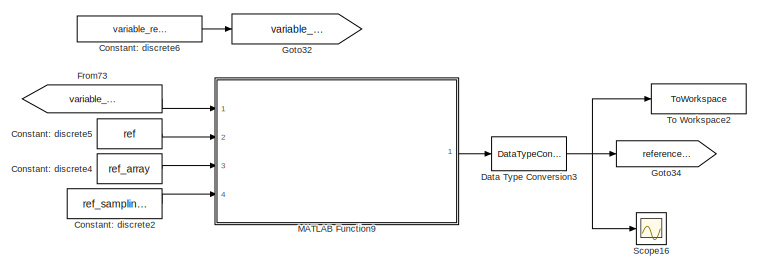
[diagram: root canvas - part 1/5, top right region]
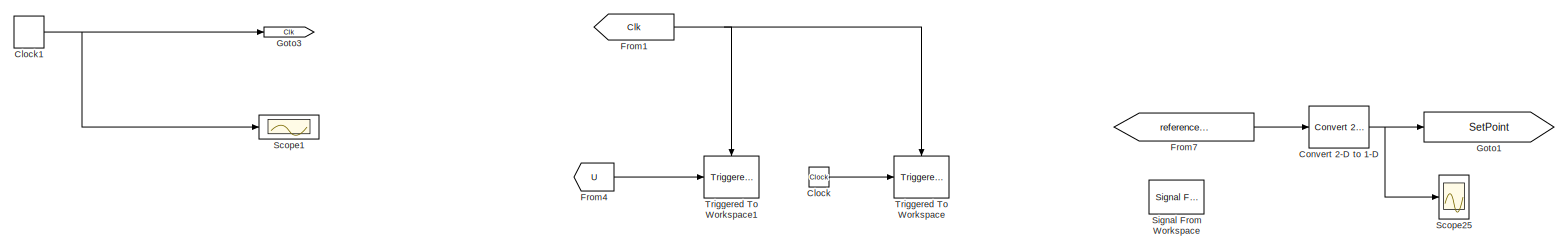
[diagram: root canvas - part 2/5, full width, middle band]
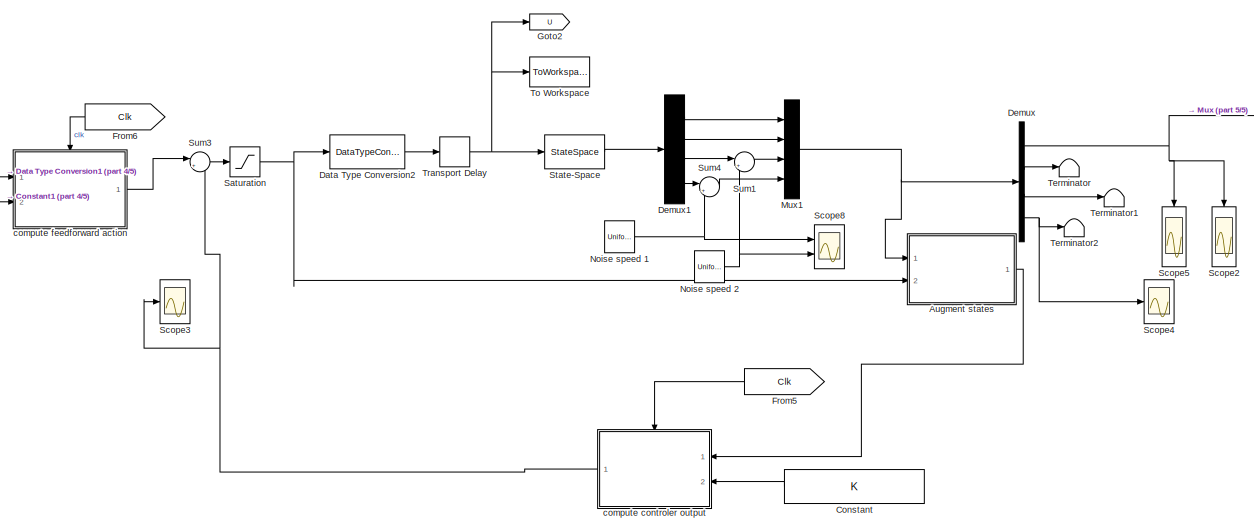
[diagram: root canvas - part 3/5, bottom center region]
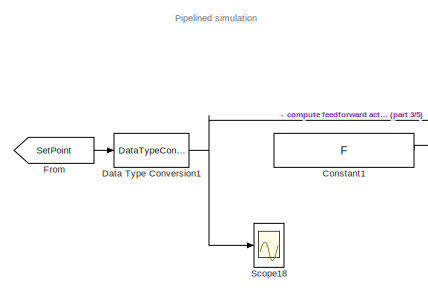
[diagram: root canvas - part 4/5, bottom left region]
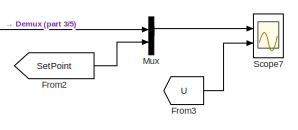
[diagram: root canvas - part 5/5, middle right region]
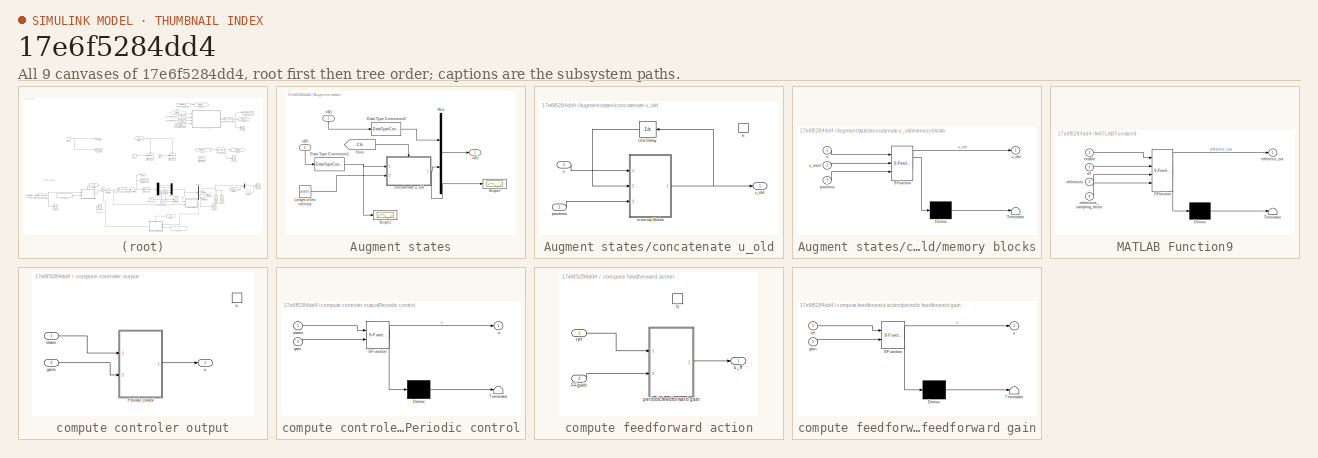
[diagram: thumbnail index - all 9 canvases of the model, root first then tree order]
MODEL slx_17e6f5284dd4
KIND model
CONFIG AbsTol = auto
CONFIG EnableMultiTasking = on
CONFIG FixedStep = auto
CONFIG MaxStep = auto
CONFIG MinStep = auto
CONFIG RelTol = 1e-3
CONFIG SampleTimeConstraint = Unconstrained
CONFIG Solver = ode45
CONFIG SolverName = ode45
CONFIG StartTime = 0.0
CONFIG StopTime = Tend
BLOCK [SubSystem] Augment states
  Ports = [2, 1]
  RequestExecContextInheritance = off
  Variant = off
BLOCK [DataTypeConversion] Augment states/Data Type Conversion1
  OutDataTypeStr = single
  RndMeth = Floor
  SaturateOnIntegerOverflow = off
BLOCK [DataTypeConversion] Augment states/Data Type Conversion2
  OutDataTypeStr = single
  RndMeth = Floor
  SaturateOnIntegerOverflow = off
BLOCK [From] Augment states/From
  GotoTag = Clk
  TagVisibility = global
BLOCK [Constant] Augment states/Lenght of the memory
  Value = pipes
BLOCK [Mux] Augment states/Mux
  DisplayOption = bar
  Inputs = 2
  Ports = [2, 1]
BLOCK [Scope] Augment states/Scope1
  NumInputPorts = 1
  Ports = [1]
  ScopeSpecificationString = Simulink.scopes.TimeScopeBlockCfg('CurrentConfiguration', extmgr.ConfigurationSet(extmgr.Configuration('Core','General UI',true),extmgr.Configuration('Core','Source UI',true),extmgr.Configuration('Sources','WiredSimulink',true,'DataLogging',true,'DataLoggingVariableName','combined_output4','DataLoggingSaveFormat','Array','DataLoggingDecimation','1','DataLoggingDecimateData',true),extmgr.Configurat...<+1747ch>
BLOCK [Scope] Augment states/Scope7
  NumInputPorts = 1
  Ports = [1]
  ScopeSpecificationString = Simulink.scopes.TimeScopeBlockCfg('CurrentConfiguration', extmgr.ConfigurationSet(extmgr.Configuration('Core','General UI',true),extmgr.Configuration('Core','Source UI',true),extmgr.Configuration('Sources','WiredSimulink',true,'DataLogging',true,'DataLoggingVariableName','combined_output3','DataLoggingSaveFormat','Array','DataLoggingDecimation','1','DataLoggingDecimateData',true),extmgr.Configurat...<+1747ch>
BLOCK [SubSystem] Augment states/concatenate u_old
  Ports = [2, 1, 0, 1]
  RequestExecContextInheritance = off
  Variant = off
BLOCK [UnitDelay] Augment states/concatenate u_old/Unit Delay
  InputProcessing = Elements as channels (sample based)
  SampleTime = -1
BLOCK [TriggerPort] Augment states/concatenate u_old/h
  PortDimensions = 1
  Ports = []
  StatesWhenEnabling = held
  VariantControl = Variant
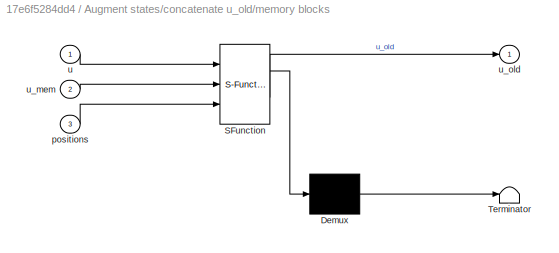
BLOCK [SubSystem] Augment states/concatenate u_old/memory blocks
  ErrorFcn = Stateflow.Translate.translate
  PermitHierarchicalResolution = ExplicitOnly
  Ports = [3, 1]
  RequestExecContextInheritance = off
  SFBlockType = MATLAB Function
  TreatAsAtomicUnit = on
  Variant = off
BLOCK [Demux] Augment states/concatenate u_old/memory blocks/ Demux 
  Outputs = 1
  Ports = [1, 1]
BLOCK [S-Function] Augment states/concatenate u_old/memory blocks/ SFunction 
  EnableBusSupport = on
  FunctionName = sf_sfun
  PortCounts = [3 2]
  Ports = [3, 2]
  SFcnIsStateOwnerBlock = off
  SFunctionDeploymentMode = off
  Tag = Stateflow S-Function simulink_pso 1
BLOCK [Terminator] Augment states/concatenate u_old/memory blocks/ Terminator 
BLOCK [Inport] Augment states/concatenate u_old/memory blocks/positions
  IconDisplay = Port number
  Port = 3
BLOCK [Inport] Augment states/concatenate u_old/memory blocks/u
  IconDisplay = Port number
BLOCK [Inport] Augment states/concatenate u_old/memory blocks/u_mem
  IconDisplay = Port number
  Port = 2
BLOCK [Outport] Augment states/concatenate u_old/memory blocks/u_old
  IconDisplay = Port number
BLOCK [Inport] Augment states/concatenate u_old/positions
  IconDisplay = Port number
  Port = 2
BLOCK [Inport] Augment states/concatenate u_old/u
  IconDisplay = Port number
  LatchByDelayingOutsideSignal = on
BLOCK [Outport] Augment states/concatenate u_old/u_old
  IconDisplay = Port number
  OutDataTypeStr = single
BLOCK [Inport] Augment states/u(k)
  IconDisplay = Port number
  Port = 2
BLOCK [Inport] Augment states/x(k)
  IconDisplay = Port number
BLOCK [Outport] Augment states/z(k)
  IconDisplay = Port number
BLOCK [Clock] Clock
BLOCK [DiscretePulseGenerator] Clock1
  Period = Ts
  PhaseDelay = 1e-9
  Ports = [0, 1]
  PulseType = Time based
BLOCK [Constant] Constant
  Value = K
  VectorParams1D = off
BLOCK [Constant] Constant1
  Value = F
  VectorParams1D = off
BLOCK [Constant] Constant: discrete2
  OutDataTypeStr = single
  SampleTime = Sm
  Value = ref_sampling_factor
BLOCK [Constant] Constant: discrete4
  OutDataTypeStr = single
  SampleTime = Sm
  Value = ref_array
BLOCK [Constant] Constant: discrete5
  OutDataTypeStr = single
  SampleTime = Sm
  Value = ref
BLOCK [Constant] Constant: discrete6
  SampleTime = Sm
  Value = variable_reference_enable
BLOCK [Reference] Convert 2-D to 1-D  REF=dspsigattribs/Convert 2-D to 1-D
  Ports = [1, 1]
  SourceBlock = dspsigattribs/Convert 2-D to 1-D
  SourceType = Convert 2-D to 1-D
BLOCK [DataTypeConversion] Data Type Conversion1
  OutDataTypeStr = single
  RndMeth = Floor
  SaturateOnIntegerOverflow = off
BLOCK [DataTypeConversion] Data Type Conversion2
  OutDataTypeStr = double
  RndMeth = Floor
  SaturateOnIntegerOverflow = off
BLOCK [DataTypeConversion] Data Type Conversion3
  OutDataTypeStr = double
  RndMeth = Floor
  SaturateOnIntegerOverflow = off
BLOCK [Demux] Demux
  DisplayOption = bar
  Ports = [1, 4]
BLOCK [Demux] Demux1
  DisplayOption = bar
  Ports = [1, 4]
BLOCK [From] From
  GotoTag = SetPoint
  TagVisibility = global
BLOCK [From] From1
  GotoTag = Clk
  TagVisibility = global
BLOCK [From] From2
  GotoTag = SetPoint
  TagVisibility = global
BLOCK [From] From3
  GotoTag = U
  TagVisibility = global
BLOCK [From] From4
  GotoTag = U
  TagVisibility = global
BLOCK [From] From5
  GotoTag = Clk
  TagVisibility = global
BLOCK [From] From6
  GotoTag = Clk
  TagVisibility = global
BLOCK [From] From7
  GotoTag = reference_output
BLOCK [From] From73
  GotoTag = variable_ref_enable
BLOCK [Goto] Goto1
  GotoTag = SetPoint
  TagVisibility = global
BLOCK [Goto] Goto2
  GotoTag = U
  TagVisibility = global
BLOCK [Goto] Goto3
  GotoTag = Clk
  TagVisibility = global
BLOCK [Goto] Goto32
  GotoTag = variable_ref_enable
BLOCK [Goto] Goto34
  GotoTag = reference_output
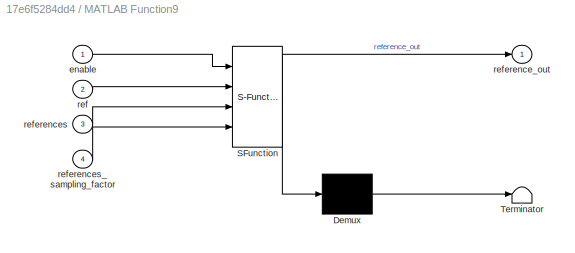
BLOCK [SubSystem] MATLAB Function9
  ErrorFcn = Stateflow.Translate.translate
  PermitHierarchicalResolution = ExplicitOnly
  Ports = [4, 1]
  RequestExecContextInheritance = off
  SFBlockType = MATLAB Function
  TreatAsAtomicUnit = on
  Variant = off
BLOCK [Demux] MATLAB Function9/ Demux 
  Outputs = 1
  Ports = [1, 1]
BLOCK [S-Function] MATLAB Function9/ SFunction 
  EnableBusSupport = on
  FunctionName = sf_sfun
  PortCounts = [4 2]
  Ports = [4, 2]
  SFcnIsStateOwnerBlock = off
  SFunctionDeploymentMode = off
  Tag = Stateflow S-Function simulink_pso 10
BLOCK [Terminator] MATLAB Function9/ Terminator 
BLOCK [Inport] MATLAB Function9/enable
  IconDisplay = Port number
BLOCK [Inport] MATLAB Function9/ref
  IconDisplay = Port number
  Port = 2
BLOCK [Outport] MATLAB Function9/reference_out
  IconDisplay = Port number
BLOCK [Inport] MATLAB Function9/references
  IconDisplay = Port number
  Port = 3
BLOCK [Inport] MATLAB Function9/references_sampling_factor
  IconDisplay = Port number
  Port = 4
BLOCK [Mux] Mux
  DisplayOption = bar
  Inputs = 2
  Ports = [2, 1]
BLOCK [Mux] Mux1
  DisplayOption = bar
  Ports = [4, 1]
BLOCK [UniformRandomNumber] Noise speed 1
  Maximum = Speed_noise
  Minimum = -Speed_noise
  SampleTime = Ts/10
BLOCK [UniformRandomNumber] Noise speed 2
  Maximum = Speed_noise
  Minimum = -Speed_noise
  SampleTime = Ts/10
BLOCK [Saturate] Saturation
  InputPortMap = u0
  LowerLimit = Sat_u(2)
  Ports = [1, 1]
  UpperLimit = Sat_u(1)
BLOCK [Scope] Scope1
  NumInputPorts = 1
  Ports = [1]
  ScopeSpecificationString = Simulink.scopes.TimeScopeBlockCfg('CurrentConfiguration', extmgr.ConfigurationSet(extmgr.Configuration('Core','General UI',true),extmgr.Configuration('Core','Source UI',true),extmgr.Configuration('Sources','WiredSimulink',true,'DataLogging',true,'DataLoggingVariableName','combined_output1','DataLoggingSaveFormat','Array','DataLoggingDecimation','1','DataLoggingDecimateData',true),extmgr.Configurat...<+1676ch>
BLOCK [Scope] Scope16
  NumInputPorts = 1
  Ports = [1]
  ScopeSpecificationString = C++SS(StrPVP('SaveName','ScopeData1'),StrPVP('LimitDataPoints','on'),StrPVP('DataFormat','Array'),StrPVP('Decimation','1'),StrPVP('BlockParamSampleInput','off'))
BLOCK [Scope] Scope18
  NumInputPorts = 1
  Ports = [1]
  ScopeSpecificationString = Simulink.scopes.TimeScopeBlockCfg('CurrentConfiguration', extmgr.ConfigurationSet(extmgr.Configuration('Core','General UI',true),extmgr.Configuration('Core','Source UI',true),extmgr.Configuration('Sources','WiredSimulink',true,'DataLogging',true,'DataLoggingVariableName','reference','DataLoggingSaveFormat','Array','DataLoggingDecimation','1','DataLoggingDecimateData',true),extmgr.Configuration('Vi...<+1760ch>
BLOCK [Scope] Scope2
  NumInputPorts = 1
  Ports = [1]
  ScopeSpecificationString = Simulink.scopes.TimeScopeBlockCfg('CurrentConfiguration', extmgr.ConfigurationSet(extmgr.Configuration('Core','General UI',true),extmgr.Configuration('Core','Source UI',true),extmgr.Configuration('Sources','WiredSimulink',true,'DataLogging',true,'DataLoggingVariableName','Out_sampled','SampleTime','Sm','DataLoggingSaveFormat','Array','DataLoggingDecimation','1','DataLoggingDecimateData',true),extm...<+1760ch>
BLOCK [Scope] Scope25
  NumInputPorts = 1
  Ports = [1]
  ScopeSpecificationString = Simulink.scopes.TimeScopeBlockCfg('CurrentConfiguration', extmgr.ConfigurationSet(extmgr.Configuration('Core','General UI',true),extmgr.Configuration('Core','Source UI',true),extmgr.Configuration('Sources','WiredSimulink',true,'DataLogging',true,'DataLoggingVariableName','SetPoint','SampleTime','h/10','DataLoggingSaveFormat','Array','DataLoggingDecimation','1','DataLoggingDecimateData',true),extmg...<+1774ch>
BLOCK [Scope] Scope3
  NumInputPorts = 1
  Ports = [1]
  ScopeSpecificationString = Simulink.scopes.TimeScopeBlockCfg('CurrentConfiguration', extmgr.ConfigurationSet(extmgr.Configuration('Core','General UI',true),extmgr.Configuration('Core','Source UI',true),extmgr.Configuration('Sources','WiredSimulink',true,'DataLogging',true,'DataLoggingVariableName','U1','SampleTime','h','DataLoggingSaveFormat','Array','DataLoggingDecimation','1','DataLoggingDecimateData',true),extmgr.Configu...<+1756ch>
BLOCK [Scope] Scope4
  NumInputPorts = 1
  Ports = [1]
  ScopeSpecificationString = Simulink.scopes.TimeScopeBlockCfg('CurrentConfiguration', extmgr.ConfigurationSet(extmgr.Configuration('Core','General UI',true),extmgr.Configuration('Core','Source UI',true),extmgr.Configuration('Sources','WiredSimulink',true,'DataLoggingVariableName','ScopeData1'),extmgr.Configuration('Visuals','Time Domain',true,'SerializedDisplays',{struct('MinYLimReal','-7.54826','MaxYLimReal','9.18643','YLab...<+1385ch>
BLOCK [Scope] Scope5
  NumInputPorts = 1
  Ports = [1]
  ScopeSpecificationString = Simulink.scopes.TimeScopeBlockCfg('CurrentConfiguration', extmgr.ConfigurationSet(extmgr.Configuration('Core','General UI',true),extmgr.Configuration('Core','Source UI',true),extmgr.Configuration('Sources','WiredSimulink',true,'DataLogging',true,'DataLoggingVariableName','Out','DataLoggingSaveFormat','Array','DataLoggingDecimation','1','DataLoggingDecimateData',true,'SampleTime','Sm'),extmgr.Confi...<+1711ch>
BLOCK [Scope] Scope7
  NumInputPorts = 2
  Ports = [2]
  ScopeSpecificationString = Simulink.scopes.TimeScopeBlockCfg('CurrentConfiguration', extmgr.ConfigurationSet(extmgr.Configuration('Core','General UI',true),extmgr.Configuration('Core','Source UI',true),extmgr.Configuration('Sources','WiredSimulink',true,'DataLoggingVariableName','ScopeData2','DataLoggingSaveFormat','Array','DataLoggingDecimation','1','DataLoggingDecimateData',true),extmgr.Configuration('Visuals','Time Domai...<+2366ch>
BLOCK [Scope] Scope8
  NumInputPorts = 2
  Ports = [2]
  ScopeSpecificationString = Simulink.scopes.TimeScopeBlockCfg('CurrentConfiguration', extmgr.ConfigurationSet(extmgr.Configuration('Core','General UI',true),extmgr.Configuration('Core','Source UI',true),extmgr.Configuration('Sources','WiredSimulink',true,'DataLoggingVariableName','ScopeData1'),extmgr.Configuration('Visuals','Time Domain',true,'SerializedDisplays',{struct('MinYLimReal','-0.0000000012','MaxYLimReal','0.0000000...<+2005ch>
BLOCK [Reference] Signal From Workspace  REF=dspsrcs4/Signal From
Workspace
  Ports = [0, 1]
  SourceBlock = dspsrcs4/Signal From\nWorkspace
  SourceType = Signal From Workspace
BLOCK [StateSpace] State-Space
  A = Ac_plant
  B = Bc_plant
  C = Cc_plant
  D = Dc_plant
  Ports = [1, 1]
  X0 = x0
BLOCK [Sum] Sum1
  IconShape = round
  InputSameDT = off
  Inputs = |++
  OutDataTypeStr = Inherit: Inherit via internal rule
  Ports = [2, 1]
  SaturateOnIntegerOverflow = off
BLOCK [Sum] Sum3
  IconShape = round
  InputSameDT = off
  Inputs = |++
  OutDataTypeStr = Inherit: Inherit via internal rule
  Ports = [2, 1]
  SaturateOnIntegerOverflow = off
BLOCK [Sum] Sum4
  IconShape = round
  InputSameDT = off
  Inputs = |++
  OutDataTypeStr = Inherit: Inherit via internal rule
  Ports = [2, 1]
  SaturateOnIntegerOverflow = off
BLOCK [Terminator] Terminator
BLOCK [Terminator] Terminator1
BLOCK [Terminator] Terminator2
BLOCK [ToWorkspace] To Workspace
  FixptAsFi = on
  MaxDataPoints = inf
  Ports = [1]
  SampleTime = Sm
  Save2DSignal = 3-D array (concatenate along third dimension)
  SaveFormat = Timeseries
  VariableName = Ua2
BLOCK [ToWorkspace] To Workspace2
  FixptAsFi = on
  MaxDataPoints = inf
  Ports = [1]
  SampleTime = Sm
  Save2DSignal = 3-D array (concatenate along third dimension)
  SaveFormat = Timeseries
  VariableName = reference_output
BLOCK [TransportDelay] Transport Delay
  DelayTime = delay
  Ports = [1, 1]
BLOCK [Reference] Triggered To Workspace  REF=dspsnks4/Triggered
To Workspace
  Ports = [1, 0, 0, 1]
  SourceBlock = dspsnks4/Triggered\nTo Workspace
  SourceType = Triggered To Workspace
  UserDataPersistent = on
BLOCK [Reference] Triggered To Workspace1  REF=dspsnks4/Triggered
To Workspace
  Ports = [1, 0, 0, 1]
  SourceBlock = dspsnks4/Triggered\nTo Workspace
  SourceType = Triggered To Workspace
  UserDataPersistent = on
BLOCK [SubSystem] compute controler output
  Ports = [2, 1, 0, 1]
  RequestExecContextInheritance = off
  Variant = off
BLOCK [SubSystem] compute controler output/Periodic control
  ErrorFcn = Stateflow.Translate.translate
  PermitHierarchicalResolution = ExplicitOnly
  Ports = [2, 1]
  RequestExecContextInheritance = off
  SFBlockType = MATLAB Function
  TreatAsAtomicUnit = on
  Variant = off
BLOCK [Demux] compute controler output/Periodic control/ Demux 
  Outputs = 1
  Ports = [1, 1]
BLOCK [S-Function] compute controler output/Periodic control/ SFunction 
  EnableBusSupport = on
  FunctionName = sf_sfun
  PortCounts = [2 2]
  Ports = [2, 2]
  SFcnIsStateOwnerBlock = off
  SFunctionDeploymentMode = off
  Tag = Stateflow S-Function simulink_pso 3
BLOCK [Terminator] compute controler output/Periodic control/ Terminator 
BLOCK [Inport] compute controler output/Periodic control/gain
  IconDisplay = Port number
  Port = 2
BLOCK [Inport] compute controler output/Periodic control/states
  IconDisplay = Port number
BLOCK [Outport] compute controler output/Periodic control/u
  IconDisplay = Port number
BLOCK [Inport] compute controler output/gains
  IconDisplay = Port number
  Port = 2
BLOCK [TriggerPort] compute controler output/h
  PortDimensions = 1
  Ports = []
  StatesWhenEnabling = held
  VariantControl = Variant
BLOCK [Inport] compute controler output/states
  IconDisplay = Port number
BLOCK [Outport] compute controler output/u
  IconDisplay = Port number
BLOCK [SubSystem] compute feedforward action
  Ports = [2, 1, 0, 1]
  RequestExecContextInheritance = off
  Variant = off
BLOCK [Inport] compute feedforward action/FFgain
  IconDisplay = Port number
  Port = 2
BLOCK [TriggerPort] compute feedforward action/h
  PortDimensions = 1
  Ports = []
  StatesWhenEnabling = held
  VariantControl = Variant
BLOCK [SubSystem] compute feedforward action/periodic feedforward gain
  ErrorFcn = Stateflow.Translate.translate
  PermitHierarchicalResolution = ExplicitOnly
  Ports = [2, 1]
  RequestExecContextInheritance = off
  SFBlockType = MATLAB Function
  TreatAsAtomicUnit = on
  Variant = off
BLOCK [Demux] compute feedforward action/periodic feedforward gain/ Demux 
  Outputs = 1
  Ports = [1, 1]
BLOCK [S-Function] compute feedforward action/periodic feedforward gain/ SFunction 
  EnableBusSupport = on
  FunctionName = sf_sfun
  PortCounts = [2 2]
  Ports = [2, 2]
  SFcnIsStateOwnerBlock = off
  SFunctionDeploymentMode = off
  Tag = Stateflow S-Function simulink_pso 4
BLOCK [Terminator] compute feedforward action/periodic feedforward gain/ Terminator 
BLOCK [Inport] compute feedforward action/periodic feedforward gain/gain
  IconDisplay = Port number
  Port = 2
BLOCK [Inport] compute feedforward action/periodic feedforward gain/ref
  IconDisplay = Port number
BLOCK [Outport] compute feedforward action/periodic feedforward gain/u
  IconDisplay = Port number
BLOCK [Inport] compute feedforward action/ref
  IconDisplay = Port number
BLOCK [Outport] compute feedforward action/u_ff
  IconDisplay = Port number
ANNOTATION (root): Pipelined simulation
NET Augment states/Data Type Conversion1:1 -> Augment states/Scope1:1, Augment states/concatenate u_old:1
LINE Augment states/Data Type Conversion2:1 -> Augment states/Mux:1
LINE Augment states/From:1 -> Augment states/concatenate u_old:trigger
LINE Augment states/Lenght of the memory:1 -> Augment states/concatenate u_old:2
LINE Augment states/Mux:1 -> Augment states/z(k):1
LINE Augment states/concatenate u_old/Unit Delay:1 -> Augment states/concatenate u_old/memory blocks:2
NET Augment states/concatenate u_old/memory blocks:1 -> Augment states/concatenate u_old/Unit Delay:1, Augment states/concatenate u_old/u_old:1
LINE Augment states/concatenate u_old/positions:1 -> Augment states/concatenate u_old/memory blocks:3
LINE Augment states/concatenate u_old/u:1 -> Augment states/concatenate u_old/memory blocks:1
NET Augment states/concatenate u_old:1 -> Augment states/Mux:2, Augment states/Scope7:1
LINE Augment states/u(k):1 -> Augment states/Data Type Conversion1:1
LINE Augment states/x(k):1 -> Augment states/Data Type Conversion2:1
LINE Augment states:1 -> compute controler output:1
NET Clock1:1 -> Goto3:1, Scope1:1
LINE Clock:1 -> Triggered To Workspace:1
LINE Constant1:1 -> compute feedforward action:2
LINE Constant: discrete2:1 -> MATLAB Function9:4
LINE Constant: discrete4:1 -> MATLAB Function9:3
LINE Constant: discrete5:1 -> MATLAB Function9:2
LINE Constant: discrete6:1 -> Goto32:1
LINE Constant:1 -> compute controler output:2
NET Convert 2-D to 1-D:1 -> Goto1:1, Scope25:1
NET Data Type Conversion1:1 -> Scope18:1, compute feedforward action:1
LINE Data Type Conversion2:1 -> Transport Delay:1
NET Data Type Conversion3:1 -> Goto34:1, Scope16:1, To Workspace2:1
LINE Demux1:1 -> Mux1:1
LINE Demux1:2 -> Mux1:2
LINE Demux1:3 -> Sum1:1
LINE Demux1:4 -> Sum4:1
NET Demux:1 -> Mux:1, Scope2:1, Scope5:1
LINE Demux:2 -> Terminator:1
LINE Demux:3 -> Terminator1:1
NET Demux:4 -> Scope4:1, Terminator2:1
NET From1:1 -> Triggered To Workspace1:trigger, Triggered To Workspace:trigger
LINE From2:1 -> Mux:2
LINE From3:1 -> Scope7:2
LINE From4:1 -> Triggered To Workspace1:1
LINE From5:1 -> compute controler output:trigger
LINE From6:1 -> compute feedforward action:trigger
LINE From73:1 -> MATLAB Function9:1
LINE From7:1 -> Convert 2-D to 1-D:1
LINE From:1 -> Data Type Conversion1:1
LINE MATLAB Function9:1 -> Data Type Conversion3:1
NET Mux1:1 -> Augment states:1, Demux:1
LINE Mux:1 -> Scope7:1
NET Noise speed 1:1 -> Scope8:1, Sum4:2
NET Noise speed 2:1 -> Scope8:2, Sum1:2
NET Saturation:1 -> Augment states:2, Data Type Conversion2:1
LINE State-Space:1 -> Demux1:1
LINE Sum1:1 -> Mux1:3
LINE Sum3:1 -> Saturation:1
LINE Sum4:1 -> Mux1:4
NET Transport Delay:1 -> Goto2:1, State-Space:1, To Workspace:1
LINE compute controler output/Periodic control:1 -> compute controler output/u:1
LINE compute controler output/gains:1 -> compute controler output/Periodic control:2
LINE compute controler output/states:1 -> compute controler output/Periodic control:1
NET compute controler output:1 -> Scope3:1, Sum3:2
LINE compute feedforward action/FFgain:1 -> compute feedforward action/periodic feedforward gain:2
LINE compute feedforward action/periodic feedforward gain:1 -> compute feedforward action/u_ff:1
LINE compute feedforward action/ref:1 -> compute feedforward action/periodic feedforward gain:1
LINE compute feedforward action:1 -> Sum3:1
note: NET lines group one-source signal fan-out (src -> all destinations, sorted); 1:1 wires keep LINE
CHART Augment states/concatenate u_old/memory blocks states=1 transitions=1
  STATE_LABEL 'eML_blk_kernel()'
  STATE_LABEL 'SCRIPT:\nfunction u_old  = fcn(u,u_mem,positions)\n%#codegen\nassert (positions<=15);\nu_old=[u_mem(2:end);u];'
CHART compute controler output/Periodic control states=1 transitions=1
  STATE_LABEL 'eML_blk_kernel()'
  STATE_LABEL 'SCRIPT:\nfunction u  = fcn(states,gain)\n%#codegen\n%assert (Period<=10);\npersistent K;\n\nif (isempty(K))\n    K=gain;\nend\n\n\nu=K*states;\n\n'
CHART compute feedforward action/periodic feedforward gain states=1 transitions=1
  STATE_LABEL 'eML_blk_kernel()'
  STATE_LABEL 'SCRIPT:\nfunction u  = fcn(ref,gain)\n%#codegen\n%assert (Period<=10);\npersistent F;\n\nif (isempty(F))\n    F=gain;\nend\n\nu=F*ref;\n\n'
CHART MATLAB Function9 states=1 transitions=1
  STATE_LABEL 'eML_blk_kernel()'
  STATE_LABEL 'SCRIPT:\nfunction reference_out = input_reference(enable, ref, references, references_sampling_factor)\n%% VARIABLE DECLARATIONS OF COUNTERS\npersistent reference_counter;\nif (isempty(reference_counter)) %It does not already exist\n    reference_counter = 1; % initialize with mode 1\nend\n\npersistent sampling_counter;\nif (isempty(sampling_counter)) %It does not already exist\n    sampling_counter = 1; % ...<+667ch>'
